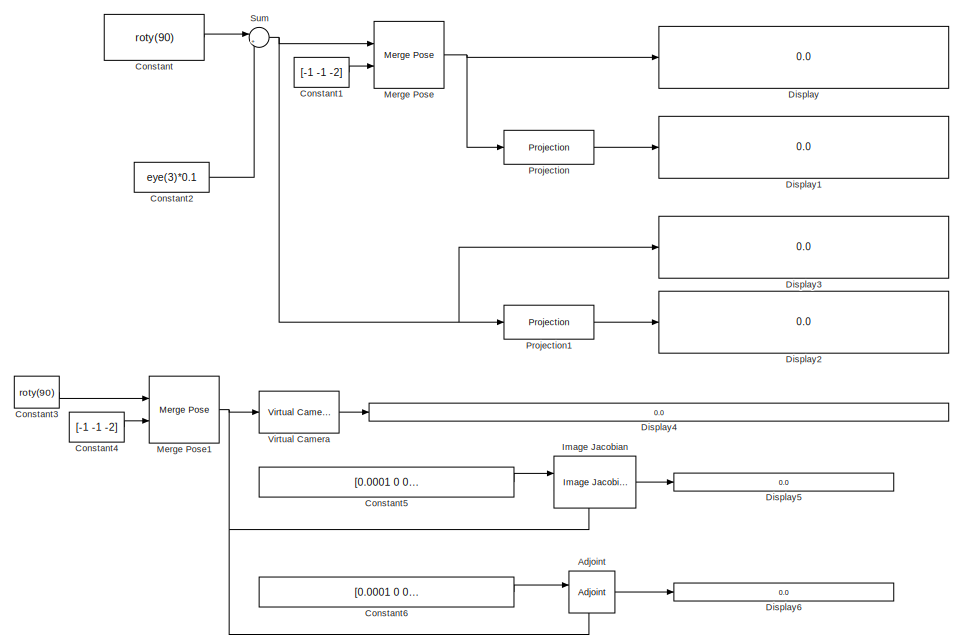
[diagram: root canvas - part 1/3, top center region]
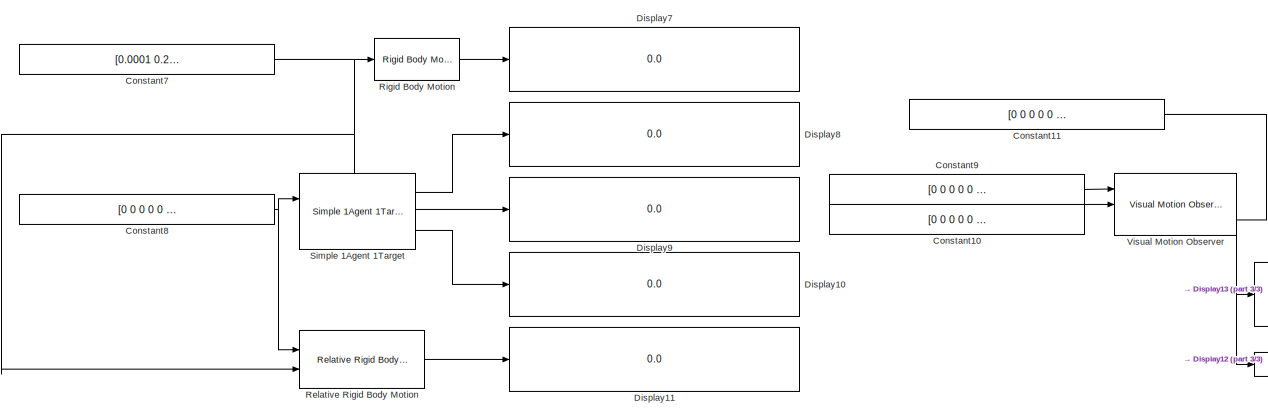
[diagram: root canvas - part 2/3, full width, bottom band]
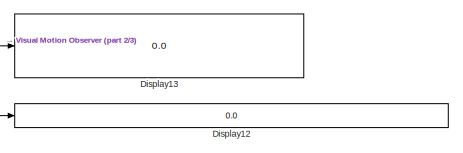
[diagram: root canvas - part 3/3, bottom right region]
MODEL slx_ab76c4fdce8b
KIND model
CONFIG AbsTol = auto
CONFIG EnableMultiTasking = off
CONFIG FixedStep = auto
CONFIG MaxStep = auto
CONFIG MinStep = auto
CONFIG RelTol = 1e-3
CONFIG SampleTimeConstraint = Unconstrained
CONFIG SolverName = VariableStepAuto
CONFIG StartTime = 0.0
CONFIG StopTime = 10.0
BLOCK [Reference] Adjoint  REF=simlib_vpc_basic/Adjoint
  NameLocation = top
  Ports = [2, 1]
  SourceBlock = simlib_vpc_basic/Adjoint
  SourceType = Adjoint Matrix [V1]
BLOCK [Constant] Constant
  Value = roty(90)
BLOCK [Constant] Constant1
  Value = [-1 -1 -2]
BLOCK [Constant] Constant10
  Value = [0 0 0 0 0 0]
BLOCK [Constant] Constant11
  Value = [0 0 0 0 0 0 0 0]
BLOCK [Constant] Constant2
  Value = eye(3)*0.1
BLOCK [Constant] Constant3
  Value = roty(90)
BLOCK [Constant] Constant4
  Value = [-1 -1 -2]
BLOCK [Constant] Constant5
  Value = [0.0001 0 0 0 0 0 0 0]
BLOCK [Constant] Constant6
  Value = [0.0001 0 0 0 0 0]
BLOCK [Constant] Constant7
  Value = [0.0001 0.2 0 0 0 pi/8]
BLOCK [Constant] Constant8
  Value = [0 0 0 0 0 0]
BLOCK [Constant] Constant9
  Value = [0 0 0 0 0 0]
BLOCK [Display] Display
  Decimation = 1
  Ports = [1]
BLOCK [Display] Display1
  Decimation = 1
  Ports = [1]
BLOCK [Display] Display10
  Decimation = 1
  Ports = [1]
BLOCK [Display] Display11
  Decimation = 1
  Ports = [1]
BLOCK [Display] Display12
  Decimation = 1
  Ports = [1]
BLOCK [Display] Display13
  Decimation = 1
  Ports = [1]
BLOCK [Display] Display2
  Decimation = 1
  Ports = [1]
BLOCK [Display] Display3
  Decimation = 1
  Ports = [1]
BLOCK [Display] Display4
  Decimation = 1
  Ports = [1]
BLOCK [Display] Display5
  Decimation = 1
  Ports = [1]
BLOCK [Display] Display6
  Decimation = 1
  Ports = [1]
BLOCK [Display] Display7
  Decimation = 1
  Ports = [1]
BLOCK [Display] Display8
  Decimation = 1
  Ports = [1]
BLOCK [Display] Display9
  Decimation = 1
  Ports = [1]
BLOCK [Reference] Image Jacobian  REF=simlib_vpc_basic/Image Jacobian
  NameLocation = top
  Ports = [2, 1]
  SourceBlock = simlib_vpc_basic/Image Jacobian
  SourceType = Image Jacobian [V1]
BLOCK [Reference] Merge Pose  REF=simlib_vpc_coremath/Merge Pose
  Ports = [2, 1]
  SourceBlock = simlib_vpc_coremath/Merge Pose
  SourceProductName = VPC Library
  SourceType = Merge pose [V1]
BLOCK [Reference] Merge Pose1  REF=simlib_vpc_coremath/Merge Pose
  Ports = [2, 1]
  SourceBlock = simlib_vpc_coremath/Merge Pose
  SourceProductName = VPC Library
  SourceType = Merge pose [V1]
BLOCK [Reference] Projection  REF=simlib_vpc_basic/Projection
  Ports = [1, 1]
  SourceBlock = simlib_vpc_basic/Projection
  SourceType = Rotation Projection [V1]
BLOCK [Reference] Projection1  REF=simlib_vpc_basic/Projection
  Ports = [1, 1]
  SourceBlock = simlib_vpc_basic/Projection
  SourceType = Rotation Projection [V1]
BLOCK [Reference] Relative Rigid Body Motion  REF=simlib_vpc_basic/Relative Rigid
Body Motion
  Ports = [2, 1]
  SourceBlock = simlib_vpc_basic/Relative Rigid\nBody Motion
  SourceType = Relative Rigid Body Motion Block [V1]
BLOCK [Reference] Rigid Body Motion  REF=simlib_vpc_basic/Rigid Body
Motion
  Ports = [1, 1]
  SourceBlock = simlib_vpc_basic/Rigid Body\nMotion
  SourceType = Rigid Body Motion Block [V1]
BLOCK [Reference] Simple 1Agent 1Target  REF=simlib_vpc_basic/Simple 1Agent 1Target
  Ports = [2, 3]
  SourceBlock = simlib_vpc_basic/Simple 1Agent 1Target
  SourceType = Simple 1Agent 1 Target block [V1]
BLOCK [Sum] Sum
  Inputs = |++
  Ports = [2, 1]
BLOCK [Reference] Virtual Camera  REF=simlib_vpc_basic/Virtual Camera
  Ports = [1, 1]
  SourceBlock = simlib_vpc_basic/Virtual Camera
  SourceType = Virtual Camera model [V1]
BLOCK [Reference] Visual Motion Observer  REF=simlib_vpc_basic/Visual Motion Observer
  Ports = [3, 2]
  SourceBlock = simlib_vpc_basic/Visual Motion Observer
  SourceType = Visual Motion Observer [V1]
LINE Adjoint:1 -> Display6:1
LINE Constant10:1 -> Visual Motion Observer:2
LINE Constant11:1 -> Visual Motion Observer:3
LINE Constant1:1 -> Merge Pose:2
LINE Constant2:1 -> Sum:2
LINE Constant3:1 -> Merge Pose1:1
LINE Constant4:1 -> Merge Pose1:2
LINE Constant5:1 -> Image Jacobian:1
LINE Constant6:1 -> Adjoint:1
NET Constant7:1 -> Relative Rigid Body Motion:2, Rigid Body Motion:1, Simple 1Agent 1Target:2
NET Constant8:1 -> Relative Rigid Body Motion:1, Simple 1Agent 1Target:1
LINE Constant9:1 -> Visual Motion Observer:1
LINE Constant:1 -> Sum:1
LINE Image Jacobian:1 -> Display5:1
NET Merge Pose1:1 -> Adjoint:2, Image Jacobian:2, Virtual Camera:1
NET Merge Pose:1 -> Display:1, Projection:1
LINE Projection1:1 -> Display2:1
LINE Projection:1 -> Display1:1
LINE Relative Rigid Body Motion:1 -> Display11:1
LINE Rigid Body Motion:1 -> Display7:1
LINE Simple 1Agent 1Target:1 -> Display8:1
LINE Simple 1Agent 1Target:2 -> Display9:1
LINE Simple 1Agent 1Target:3 -> Display10:1
NET Sum:1 -> Display3:1, Merge Pose:1, Projection1:1
LINE Virtual Camera:1 -> Display4:1
LINE Visual Motion Observer:1 -> Display12:1
LINE Visual Motion Observer:2 -> Display13:1
note: NET lines group one-source signal fan-out (src -> all destinations, sorted); 1:1 wires keep LINE
